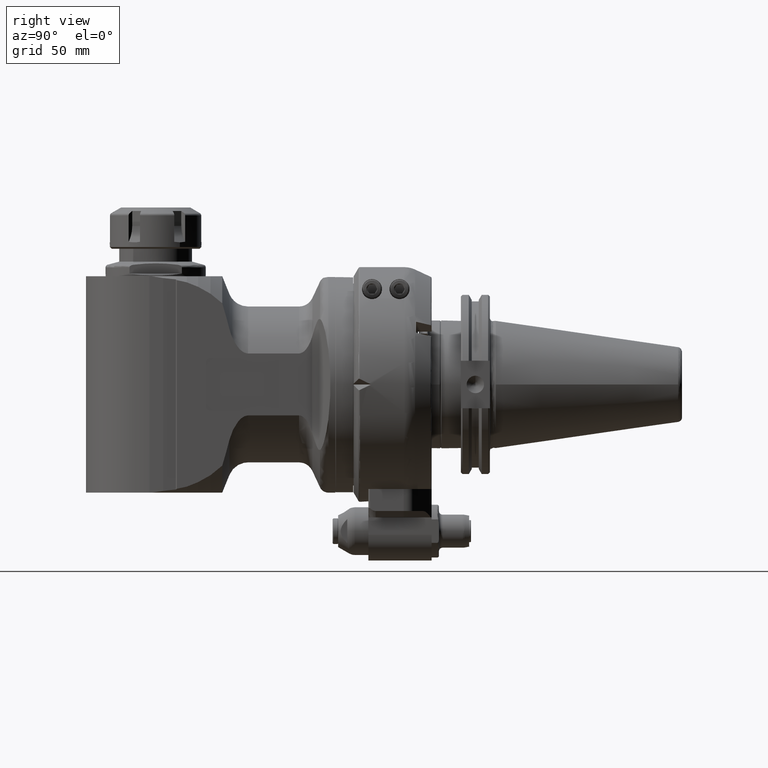
[diagram: clean part render]
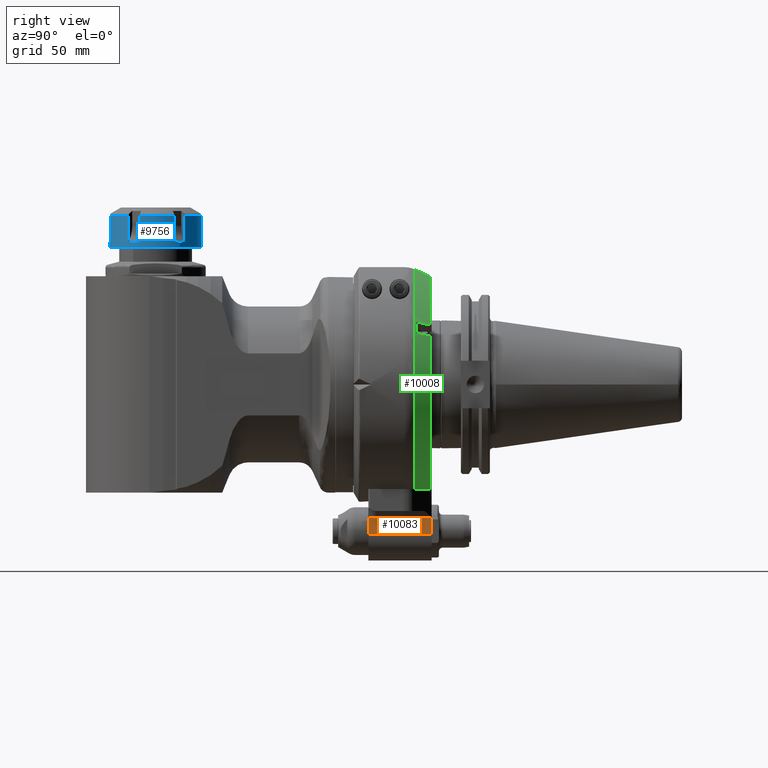
[diagram: same view with three faces highlighted in distinct colors, each labeled with its STEP entity id]
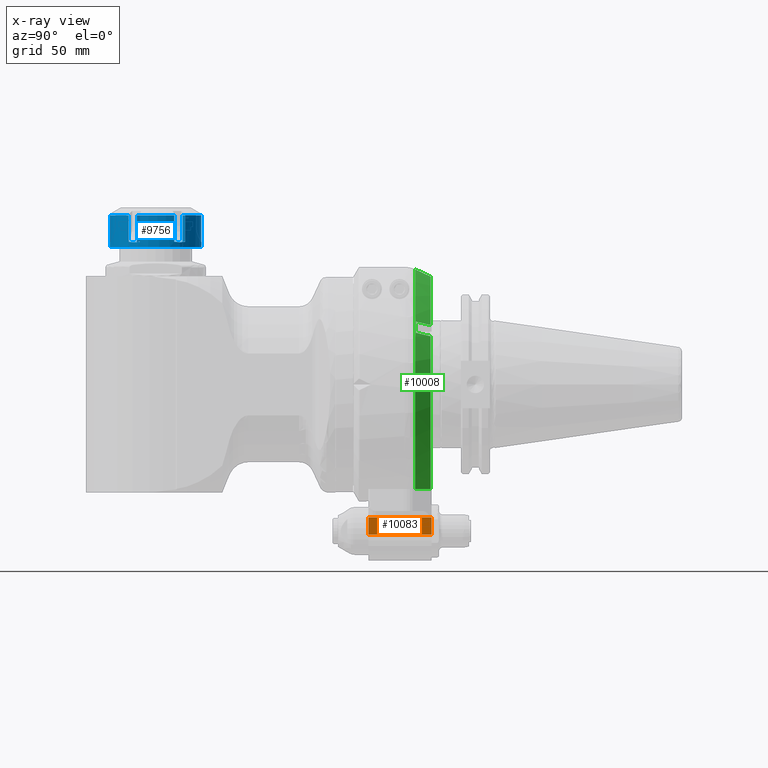
[diagram: x-ray of the same camera — body ghosted, the three highlighted faces saturated]
A machine part, right view with three faces highlighted in distinct colors.
The next image is the same camera in x-ray (body ghosted, the three faces saturated) — at least one of them is partly hidden behind the body in this view.
Their STEP definitions:

[orange] entity #10083 — the highlighted planar face has unit normal (-1, 0, 0).
#114=(
BOUNDED_CURVE()
B_SPLINE_CURVE(2,(#19482,#19483,#19484),.UNSPECIFIED.,.F.,.F.)
B_SPLINE_CURVE_WITH_KNOTS((3,3),(-2.58287776725954,-2.57434975898471),
 .UNSPECIFIED.)
CURVE()
GEOMETRIC_REPRESENTATION_ITEM()
RATIONAL_B_SPLINE_CURVE((1.44254286468406,1.44297118444754,1.44339185140923))
REPRESENTATION_ITEM('')
);
#242=B_SPLINE_CURVE_WITH_KNOTS('',3,(#19485,#19486,#19487,#19488,#19489,
#19490),.UNSPECIFIED.,.F.,.F.,(4,1,1,4),(0.,0.3333333333333,0.6666666666667,
1.),.UNSPECIFIED.);
#618=PLANE('',#11211);
#1256=FACE_OUTER_BOUND('',#1904,.T.);
#1904=EDGE_LOOP('',(#8381,#8382,#8383,#8384,#8385,#8386,#8387));
#2323=LINE('',#16411,#2957);
#2366=LINE('',#16848,#3000);
#2369=LINE('',#16854,#3003);
#2472=LINE('',#18696,#3106);
#2537=LINE('',#19480,#3171);
#2957=VECTOR('',#12657,9.5);
#3000=VECTOR('',#12782,0.7629679276389);
#3003=VECTOR('',#12785,8.70839142844);
#3106=VECTOR('',#13272,34.5);
#3171=VECTOR('',#13591,34.5);
#4312=VERTEX_POINT('',#16408);
#4313=VERTEX_POINT('',#16410);
#4377=VERTEX_POINT('',#16845);
#4378=VERTEX_POINT('',#16847);
#4380=VERTEX_POINT('',#16851);
#4381=VERTEX_POINT('',#16853);
#4627=VERTEX_POINT('',#19481);
#5465=EDGE_CURVE('',#4313,#4312,#2323,.T.);
#5545=EDGE_CURVE('',#4378,#4377,#2366,.T.);
#5548=EDGE_CURVE('',#4381,#4380,#2369,.T.);
#5789=EDGE_CURVE('',#4377,#4313,#2472,.T.);
#5939=EDGE_CURVE('',#4381,#4312,#2537,.T.);
#5940=EDGE_CURVE('',#4627,#4380,#114,.T.);
#5941=EDGE_CURVE('',#4378,#4627,#242,.T.);
#8381=ORIENTED_EDGE('',*,*,#5789,.T.);
#8382=ORIENTED_EDGE('',*,*,#5465,.T.);
#8383=ORIENTED_EDGE('',*,*,#5939,.F.);
#8384=ORIENTED_EDGE('',*,*,#5548,.T.);
#8385=ORIENTED_EDGE('',*,*,#5940,.F.);
#8386=ORIENTED_EDGE('',*,*,#5941,.F.);
#8387=ORIENTED_EDGE('',*,*,#5545,.T.);
#10083=ADVANCED_FACE('',(#1256),#618,.F.);
#11211=AXIS2_PLACEMENT_3D('',#19479,#13589,#13590);
#12657=DIRECTION('',(0.,0.,-1.));
#12782=DIRECTION('',(-3.073496587321E-9,-8.660976697957E-13,1.));
#12785=DIRECTION('',(0.,0.,1.));
#13272=DIRECTION('',(0.,-1.,0.));
#13589=DIRECTION('center_axis',(-1.,0.,0.));
#13590=DIRECTION('ref_axis',(0.,-1.,0.));
#13591=DIRECTION('',(0.,-1.,0.));
#16408=CARTESIAN_POINT('',(15.,7.999999769231,-82.));
#16410=CARTESIAN_POINT('',(15.,7.999999769231,-72.5));
#16411=CARTESIAN_POINT('',(15.,7.999999769231,-72.5));
#16845=CARTESIAN_POINT('',(15.,42.49999976923,-72.5));
#16847=CARTESIAN_POINT('',(15.0000000030541,42.4999997694296,-73.2629679283757));
#16848=CARTESIAN_POINT('',(15.00000000234,42.49999976923,-73.26296792764));
#16851=CARTESIAN_POINT('',(15.,42.49999976923,-73.29160857156));
#16853=CARTESIAN_POINT('',(15.,42.49999976923,-82.));
#16854=CARTESIAN_POINT('',(15.,42.49999976923,-82.));
#18696=CARTESIAN_POINT('',(15.,42.49999976923,-72.5));
#19479=CARTESIAN_POINT('Origin',(15.,55.29999976923,-52.7999976));
#19480=CARTESIAN_POINT('',(15.,42.49999976923,-82.));
#19481=CARTESIAN_POINT('',(14.9999999975254,42.4392078598809,-73.2892304850293));
#19482=CARTESIAN_POINT('Ctrl Pts',(15.,42.4392078600345,-73.2892304853377));
#19483=CARTESIAN_POINT('Ctrl Pts',(15.,42.4696214158217,-73.2904305962976));
#19484=CARTESIAN_POINT('Ctrl Pts',(15.,42.4999997692327,-73.2916085715602));
#19485=CARTESIAN_POINT('Ctrl Pts',(15.00000000234,42.49999976923,-73.26296792764));
#19486=CARTESIAN_POINT('Ctrl Pts',(15.00000000234,42.49325643682,-73.2658556512));
#19487=CARTESIAN_POINT('Ctrl Pts',(14.99999999859,42.47976221864,-73.27165130213));
#19488=CARTESIAN_POINT('Ctrl Pts',(15.00000000141,42.4594983636,-73.28040536456));
#19489=CARTESIAN_POINT('Ctrl Pts',(14.99999999765,42.44597387887,-73.28628201667));
#19490=CARTESIAN_POINT('Ctrl Pts',(14.99999999765,42.43920786026,-73.28923048521));

[blue] entity #9756 — the highlighted cylindrical surface (bore or boss wall) has radius 25 mm, axis along (0, -0, 1).
#152=B_SPLINE_CURVE_WITH_KNOTS('',3,(#15366,#15367,#15368,#15369,#15370,
#15371,#15372,#15373,#15374,#15375),.UNSPECIFIED.,.F.,.F.,(4,2,2,2,4),(1.2833686320491,
1.29546874107736,1.61589836925921,1.93632799744106,1.94842810647175),
 .UNSPECIFIED.);
#153=B_SPLINE_CURVE_WITH_KNOTS('',3,(#15383,#15384,#15385,#15386,#15387,
#15388,#15389,#15390,#15391,#15392),.UNSPECIFIED.,.F.,.F.,(4,2,2,2,4),(1.28336863205176,
1.29546874107993,1.61589836926244,1.93632799744495,1.94842810647282),
 .UNSPECIFIED.);
#154=B_SPLINE_CURVE_WITH_KNOTS('',3,(#15400,#15401,#15402,#15403,#15404,
#15405,#15406,#15407,#15408,#15409),.UNSPECIFIED.,.F.,.F.,(4,2,2,2,4),(1.28336863205147,
1.29546874107986,1.61589836926236,1.93632799744485,1.94842810647336),
 .UNSPECIFIED.);
#155=B_SPLINE_CURVE_WITH_KNOTS('',3,(#15417,#15418,#15419,#15420,#15421,
#15422),.UNSPECIFIED.,.F.,.F.,(4,2,4),(-1.94842810647349,-1.93632799744448,
-1.61589836926205),.UNSPECIFIED.);
#156=B_SPLINE_CURVE_WITH_KNOTS('',3,(#15425,#15426,#15427,#15428,#15429,
#15430),.UNSPECIFIED.,.F.,.F.,(4,2,4),(-1.61589836926205,-1.29546874107962,
-1.28336863205084),.UNSPECIFIED.);
#157=B_SPLINE_CURVE_WITH_KNOTS('',3,(#15438,#15439,#15440,#15441,#15442,
#15443,#15444,#15445,#15446,#15447),.UNSPECIFIED.,.F.,.F.,(4,2,2,2,4),(1.28336863205397,
1.29546874107995,1.61589836926247,1.93632799744499,1.94842810647285),
 .UNSPECIFIED.);
#158=B_SPLINE_CURVE_WITH_KNOTS('',3,(#15455,#15456,#15457,#15458,#15459,
#15460,#15461,#15462,#15463,#15464),.UNSPECIFIED.,.F.,.F.,(4,2,2,2,4),(1.28336863204639,
1.29546874107565,1.61589836925705,1.93632799743846,1.94842810646706),
 .UNSPECIFIED.);
#733=CYLINDRICAL_SURFACE('',#10538,25.);
#929=FACE_OUTER_BOUND('',#1529,.T.);
#1529=EDGE_LOOP('',(#6748,#6749,#6750,#6751,#6752,#6753,#6754,#6755,#6756,
#6757,#6758,#6759,#6760,#6761,#6762,#6763,#6764,#6765,#6766,#6767,#6768,
#6769,#6770,#6771,#6772,#6773,#6774,#6775));
#2181=LINE('',#15377,#2815);
#2182=LINE('',#15381,#2816);
#2183=LINE('',#15394,#2817);
#2184=LINE('',#15398,#2818);
#2185=LINE('',#15411,#2819);
#2186=LINE('',#15415,#2820);
#2187=LINE('',#15423,#2821);
#2188=LINE('',#15432,#2822);
#2189=LINE('',#15436,#2823);
#2190=LINE('',#15449,#2824);
#2191=LINE('',#15453,#2825);
#2192=LINE('',#15466,#2826);
#2193=LINE('',#15469,#2827);
#2815=VECTOR('',#11889,14.29830773003);
#2816=VECTOR('',#11892,14.29830773003);
#2817=VECTOR('',#11893,14.29830773003);
#2818=VECTOR('',#11896,14.29830773003);
#2819=VECTOR('',#11897,14.29830773003);
#2820=VECTOR('',#11900,14.29830773003);
#2821=VECTOR('',#11901,25.);
#2822=VECTOR('',#11902,14.29830773003);
#2823=VECTOR('',#11905,14.29830773003);
#2824=VECTOR('',#11906,14.29830773003);
#2825=VECTOR('',#11909,14.29830773003);
#2826=VECTOR('',#11910,14.29830773003);
#2827=VECTOR('',#11913,14.29830773003);
#3471=CIRCLE('',#10537,25.);
#3472=CIRCLE('',#10539,25.);
#3473=CIRCLE('',#10540,25.);
#3474=CIRCLE('',#10541,25.);
#3475=CIRCLE('',#10542,25.);
#3476=CIRCLE('',#10543,25.);
#3477=CIRCLE('',#10544,25.);
#4094=VERTEX_POINT('',#15360);
#4095=VERTEX_POINT('',#15364);
#4096=VERTEX_POINT('',#15365);
#4097=VERTEX_POINT('',#15376);
#4098=VERTEX_POINT('',#15378);
#4099=VERTEX_POINT('',#15380);
#4100=VERTEX_POINT('',#15382);
#4101=VERTEX_POINT('',#15393);
#4102=VERTEX_POINT('',#15395);
#4103=VERTEX_POINT('',#15397);
#4104=VERTEX_POINT('',#15399);
#4105=VERTEX_POINT('',#15410);
#4106=VERTEX_POINT('',#15412);
#4107=VERTEX_POINT('',#15414);
#4108=VERTEX_POINT('',#15416);
#4109=VERTEX_POINT('',#15424);
#4110=VERTEX_POINT('',#15431);
#4111=VERTEX_POINT('',#15433);
#4112=VERTEX_POINT('',#15435);
#4113=VERTEX_POINT('',#15437);
#4114=VERTEX_POINT('',#15448);
#4115=VERTEX_POINT('',#15450);
#4116=VERTEX_POINT('',#15452);
#4117=VERTEX_POINT('',#15454);
#4118=VERTEX_POINT('',#15465);
#4119=VERTEX_POINT('',#15467);
#5115=EDGE_CURVE('',#4094,#4094,#3471,.T.);
#5117=EDGE_CURVE('',#4095,#4096,#152,.T.);
#5118=EDGE_CURVE('',#4095,#4097,#2181,.T.);
#5119=EDGE_CURVE('',#4098,#4097,#3472,.T.);
#5120=EDGE_CURVE('',#4098,#4099,#2182,.T.);
#5121=EDGE_CURVE('',#4100,#4099,#153,.T.);
#5122=EDGE_CURVE('',#4100,#4101,#2183,.T.);
#5123=EDGE_CURVE('',#4102,#4101,#3473,.T.);
#5124=EDGE_CURVE('',#4102,#4103,#2184,.T.);
#5125=EDGE_CURVE('',#4104,#4103,#154,.T.);
#5126=EDGE_CURVE('',#4104,#4105,#2185,.T.);
#5127=EDGE_CURVE('',#4106,#4105,#3474,.T.);
#5128=EDGE_CURVE('',#4106,#4107,#2186,.T.);
#5129=EDGE_CURVE('',#4108,#4107,#155,.F.);
#5130=EDGE_CURVE('',#4108,#4094,#2187,.T.);
#5131=EDGE_CURVE('',#4109,#4108,#156,.F.);
#5132=EDGE_CURVE('',#4109,#4110,#2188,.T.);
#5133=EDGE_CURVE('',#4111,#4110,#3475,.T.);
#5134=EDGE_CURVE('',#4111,#4112,#2189,.T.);
#5135=EDGE_CURVE('',#4113,#4112,#157,.T.);
#5136=EDGE_CURVE('',#4113,#4114,#2190,.T.);
#5137=EDGE_CURVE('',#4115,#4114,#3476,.T.);
#5138=EDGE_CURVE('',#4115,#4116,#2191,.T.);
#5139=EDGE_CURVE('',#4117,#4116,#158,.T.);
#5140=EDGE_CURVE('',#4117,#4118,#2192,.T.);
#5141=EDGE_CURVE('',#4119,#4118,#3477,.T.);
#5142=EDGE_CURVE('',#4119,#4096,#2193,.T.);
#6748=ORIENTED_EDGE('',*,*,#5117,.F.);
#6749=ORIENTED_EDGE('',*,*,#5118,.T.);
#6750=ORIENTED_EDGE('',*,*,#5119,.F.);
#6751=ORIENTED_EDGE('',*,*,#5120,.T.);
#6752=ORIENTED_EDGE('',*,*,#5121,.F.);
#6753=ORIENTED_EDGE('',*,*,#5122,.T.);
#6754=ORIENTED_EDGE('',*,*,#5123,.F.);
#6755=ORIENTED_EDGE('',*,*,#5124,.T.);
#6756=ORIENTED_EDGE('',*,*,#5125,.F.);
#6757=ORIENTED_EDGE('',*,*,#5126,.T.);
#6758=ORIENTED_EDGE('',*,*,#5127,.F.);
#6759=ORIENTED_EDGE('',*,*,#5128,.T.);
#6760=ORIENTED_EDGE('',*,*,#5129,.F.);
#6761=ORIENTED_EDGE('',*,*,#5130,.T.);
#6762=ORIENTED_EDGE('',*,*,#5115,.F.);
#6763=ORIENTED_EDGE('',*,*,#5130,.F.);
#6764=ORIENTED_EDGE('',*,*,#5131,.F.);
#6765=ORIENTED_EDGE('',*,*,#5132,.T.);
#6766=ORIENTED_EDGE('',*,*,#5133,.F.);
#6767=ORIENTED_EDGE('',*,*,#5134,.T.);
#6768=ORIENTED_EDGE('',*,*,#5135,.F.);
#6769=ORIENTED_EDGE('',*,*,#5136,.T.);
#6770=ORIENTED_EDGE('',*,*,#5137,.F.);
#6771=ORIENTED_EDGE('',*,*,#5138,.T.);
#6772=ORIENTED_EDGE('',*,*,#5139,.F.);
#6773=ORIENTED_EDGE('',*,*,#5140,.T.);
#6774=ORIENTED_EDGE('',*,*,#5141,.F.);
#6775=ORIENTED_EDGE('',*,*,#5142,.T.);
#9756=ADVANCED_FACE('',(#929),#733,.T.);
#10537=AXIS2_PLACEMENT_3D('',#15361,#11884,#11885);
#10538=AXIS2_PLACEMENT_3D('',#15363,#11887,#11888);
#10539=AXIS2_PLACEMENT_3D('',#15379,#11890,#11891);
#10540=AXIS2_PLACEMENT_3D('',#15396,#11894,#11895);
#10541=AXIS2_PLACEMENT_3D('',#15413,#11898,#11899);
#10542=AXIS2_PLACEMENT_3D('',#15434,#11903,#11904);
#10543=AXIS2_PLACEMENT_3D('',#15451,#11907,#11908);
#10544=AXIS2_PLACEMENT_3D('',#15468,#11911,#11912);
#11884=DIRECTION('center_axis',(0.,1.,0.));
#11885=DIRECTION('ref_axis',(-0.529933890699467,0.,0.848038956350547));
#11887=DIRECTION('center_axis',(0.,-1.,0.));
#11888=DIRECTION('ref_axis',(0.529933890699467,0.,-0.848038956350547));
#11889=DIRECTION('',(-1.888378993423E-14,-1.,3.031345226284E-14));
#11890=DIRECTION('center_axis',(0.,-1.,0.));
#11891=DIRECTION('ref_axis',(-0.34166268719178,0.,-0.939822647195146));
#11892=DIRECTION('',(1.093272048824E-14,1.,0.));
#11893=DIRECTION('',(2.882262674172E-14,-1.,2.186544097647E-14));
#11894=DIRECTION('center_axis',(0.,-1.,0.));
#11895=DIRECTION('ref_axis',(-0.984741631118832,0.,-0.174022756964206));
#11896=DIRECTION('',(0.,1.,-1.192660416899E-14));
#11897=DIRECTION('',(3.379204514546E-14,-1.,0.));
#11898=DIRECTION('center_axis',(0.,-1.,0.));
#11899=DIRECTION('ref_axis',(-0.643078943927024,0.,0.765799890230929));
#11900=DIRECTION('',(-1.391437153049E-14,1.,0.));
#11901=DIRECTION('',(0.,1.,0.));
#11902=DIRECTION('',(-2.087155729573E-14,-1.,-4.720947483558E-14));
#11903=DIRECTION('center_axis',(0.,-1.,0.));
#11904=DIRECTION('ref_axis',(0.341662687191812,0.,0.939822647195134));
#11905=DIRECTION('',(-2.484709201873E-14,1.,1.615060981217E-14));
#11906=DIRECTION('',(-3.279816146471E-14,-1.,-2.559250477928E-14));
#11907=DIRECTION('center_axis',(0.,-1.,0.));
#11908=DIRECTION('ref_axis',(0.984741631118832,0.,0.174022756964206));
#11909=DIRECTION('',(0.,1.,0.));
#11910=DIRECTION('',(-4.174311459145E-14,-1.,0.));
#11911=DIRECTION('center_axis',(0.,-1.,0.));
#11912=DIRECTION('ref_axis',(0.643078943927024,0.,-0.765799890230929));
#11913=DIRECTION('',(0.,1.,0.));
#15360=CARTESIAN_POINT('',(96.75165273251,-75.,21.20097390876));
#15361=CARTESIAN_POINT('Origin',(110.,-75.,6.471299424077E-14));
#15363=CARTESIAN_POINT('Origin',(110.,-83.5,6.518483902624E-14));
#15364=CARTESIAN_POINT('',(120.160516134,-77.83566686619,-22.84215208536));
#15365=CARTESIAN_POINT('',(126.0769735982,-77.83566686619,-19.14499725577));
#15366=CARTESIAN_POINT('Ctrl Pts',(120.160516134002,-77.8356668661983,-22.8421520853594));
#15367=CARTESIAN_POINT('Ctrl Pts',(120.199744558307,-77.8272006773188,-22.8247027208436));
#15368=CARTESIAN_POINT('Ctrl Pts',(120.238964364057,-77.8189000401072,-22.8071361206508));
#15369=CARTESIAN_POINT('Ctrl Pts',(121.316373475687,-77.5953369935485,-22.3212189231742));
#15370=CARTESIAN_POINT('Ctrl Pts',(122.342557909263,-77.5000000000137,-21.7669956406229));
#15371=CARTESIAN_POINT('Ctrl Pts',(124.15413662571,-77.5000000000137,-20.6349521769043));
#15372=CARTESIAN_POINT('Ctrl Pts',(125.102095424081,-77.5953369935485,-19.9555465136752));
#15373=CARTESIAN_POINT('Ctrl Pts',(126.011113919719,-77.8189000401088,-19.2001583411206));
#15374=CARTESIAN_POINT('Ctrl Pts',(126.044094556275,-77.8272006773221,-19.172607366211));
#15375=CARTESIAN_POINT('Ctrl Pts',(126.076973598189,-77.8356668662034,-19.1449972557616));
#15376=CARTESIAN_POINT('',(120.160516134,-92.13397459622,-22.84215208536));
#15377=CARTESIAN_POINT('',(120.160516134,-77.83566686618,-22.84215208536));
#15378=CARTESIAN_POINT('',(101.4584328202,-92.13397459622,-23.49556617988));
#15379=CARTESIAN_POINT('Origin',(110.,-92.13397459622,6.566412089578E-14));
#15380=CARTESIAN_POINT('',(101.4584328202,-77.83566686619,-23.49556617987));
#15381=CARTESIAN_POINT('',(101.4584328202,-92.13397459622,-23.49556617988));
#15382=CARTESIAN_POINT('',(95.29837408397,-77.83566686619,-20.22034113028));
#15383=CARTESIAN_POINT('Ctrl Pts',(95.2983740839662,-77.8356668661823,-20.2203411302827));
#15384=CARTESIAN_POINT('Ctrl Pts',(95.3330998890692,-77.8272006773028,-20.2455892600233));
#15385=CARTESIAN_POINT('Ctrl Pts',(95.367922913969,-77.8189000400913,-20.2707713080377));
#15386=CARTESIAN_POINT('Ctrl Pts',(96.327444106936,-77.5953369935324,-20.9608763702414));
#15387=CARTESIAN_POINT('Ctrl Pts',(97.3205077657842,-77.4999999999975,-21.5724665174122));
#15388=CARTESIAN_POINT('Ctrl Pts',(99.2066755217802,-77.4999999999975,-22.5753179749538));
#15389=CARTESIAN_POINT('Ctrl Pts',(100.269037484799,-77.5953369935324,-23.0565715444699));
#15390=CARTESIAN_POINT('Ctrl Pts',(101.377732079762,-77.8189000400911,-23.4661105679221));
#15391=CARTESIAN_POINT('Ctrl Pts',(101.418082242201,-77.8272006773024,-23.4808971495548));
#15392=CARTESIAN_POINT('Ctrl Pts',(101.458432820199,-77.8356668661817,-23.4955661798764));
#15393=CARTESIAN_POINT('',(95.29837408396,-92.13397459622,-20.22034113028));
#15394=CARTESIAN_POINT('',(95.29837408396,-77.83566686619,-20.22034113028));
#15395=CARTESIAN_POINT('',(85.38145922203,-92.13397459622,-4.350568924106));
#15396=CARTESIAN_POINT('Origin',(110.,-92.13397459622,6.566412089578E-14));
#15397=CARTESIAN_POINT('',(85.38145922203,-77.83566686619,-4.350568924105));
#15398=CARTESIAN_POINT('',(85.38145922203,-92.13397459622,-4.350568924106));
#15399=CARTESIAN_POINT('',(85.13785794997,-77.83566686618,2.621810955082));
#15400=CARTESIAN_POINT('Ctrl Pts',(85.1378579499711,-77.8356668661832,2.62181095508125));
#15401=CARTESIAN_POINT('Ctrl Pts',(85.1333553307691,-77.8272006773036,2.5791134608241));
#15402=CARTESIAN_POINT('Ctrl Pts',(85.1289585499191,-77.8189000400919,2.53636481261629));
#15403=CARTESIAN_POINT('Ctrl Pts',(85.0110706312539,-77.5953369935328,1.36034255293476));
#15404=CARTESIAN_POINT('Ctrl Pts',(84.9779498565238,-77.4999999999979,0.194529123211796));
#15405=CARTESIAN_POINT('Ctrl Pts',(85.0525388960686,-77.4999999999979,-1.94036579805058));
#15406=CARTESIAN_POINT('Ctrl Pts',(85.1669420607152,-77.5953369935329,-3.10102503079719));
#15407=CARTESIAN_POINT('Ctrl Pts',(85.3666181600462,-77.818900040092,-4.26595222680157));
#15408=CARTESIAN_POINT('Ctrl Pts',(85.3739876859373,-77.8272006773037,-4.30828978333963));
#15409=CARTESIAN_POINT('Ctrl Pts',(85.3814592220294,-77.8356668661834,-4.35056892410641));
#15410=CARTESIAN_POINT('',(85.13785794997,-92.13397459622,2.621810955082));
#15411=CARTESIAN_POINT('',(85.13785794997,-77.83566686618,2.621810955082));
#15412=CARTESIAN_POINT('',(93.92302640182,-92.13397459622,19.14499725577));
#15413=CARTESIAN_POINT('Origin',(110.,-92.13397459622,6.566412089578E-14));
#15414=CARTESIAN_POINT('',(93.92302640182,-77.83566686619,19.14499725577));
#15415=CARTESIAN_POINT('',(93.92302640182,-92.13397459622,19.14499725577));
#15416=CARTESIAN_POINT('',(96.7516527325133,-77.4999999999994,21.2009739087637));
#15417=CARTESIAN_POINT('Ctrl Pts',(93.9230264018196,-77.835666866186,19.1449972557693));
#15418=CARTESIAN_POINT('Ctrl Pts',(93.9559054437291,-77.8272006773059,19.1726073662149));
#15419=CARTESIAN_POINT('Ctrl Pts',(93.988886080281,-77.8189000400938,19.2001583411206));
#15420=CARTESIAN_POINT('Ctrl Pts',(94.8979045759158,-77.5953369935343,19.955546513673));
#15421=CARTESIAN_POINT('Ctrl Pts',(95.8458633742879,-77.4999999999994,20.6349521769034));
#15422=CARTESIAN_POINT('Ctrl Pts',(96.7516527325133,-77.4999999999994,21.2009739087638));
#15423=CARTESIAN_POINT('',(96.7516527325133,-83.5,21.2009739087637));
#15424=CARTESIAN_POINT('',(99.83948386601,-77.83566686619,22.84215208536));
#15425=CARTESIAN_POINT('Ctrl Pts',(96.7516527325133,-77.4999999999994,21.2009739087638));
#15426=CARTESIAN_POINT('Ctrl Pts',(97.6574420907387,-77.4999999999994,21.7669956406241));
#15427=CARTESIAN_POINT('Ctrl Pts',(98.6836265243167,-77.5953369935344,22.3212189231762));
#15428=CARTESIAN_POINT('Ctrl Pts',(99.7610356359505,-77.8189000400936,22.8071361206542));
#15429=CARTESIAN_POINT('Ctrl Pts',(99.8002554417021,-77.8272006773056,22.8247027208477));
#15430=CARTESIAN_POINT('Ctrl Pts',(99.839483866009,-77.8356668661855,22.8421520853643));
#15431=CARTESIAN_POINT('',(99.83948386601,-92.13397459622,22.84215208536));
#15432=CARTESIAN_POINT('',(99.83948386601,-77.83566686619,22.84215208536));
#15433=CARTESIAN_POINT('',(118.5415671798,-92.13397459622,23.49556617988));
#15434=CARTESIAN_POINT('Origin',(110.,-92.13397459622,6.566412089578E-14));
#15435=CARTESIAN_POINT('',(118.5415671798,-77.83566686619,23.49556617987));
#15436=CARTESIAN_POINT('',(118.5415671798,-92.13397459622,23.49556617988));
#15437=CARTESIAN_POINT('',(124.701625916,-77.83566686619,20.22034113028));
#15438=CARTESIAN_POINT('Ctrl Pts',(124.701625916015,-77.8356668661776,20.2203411302965));
#15439=CARTESIAN_POINT('Ctrl Pts',(124.666900110918,-77.8272006772997,20.2455892600325));
#15440=CARTESIAN_POINT('Ctrl Pts',(124.632077086025,-77.8189000400897,20.2707713080423));
#15441=CARTESIAN_POINT('Ctrl Pts',(123.672555893064,-77.5953369935323,20.9608763702415));
#15442=CARTESIAN_POINT('Ctrl Pts',(122.679492234216,-77.4999999999974,21.5724665174123));
#15443=CARTESIAN_POINT('Ctrl Pts',(120.79332447822,-77.4999999999974,22.5753179749539));
#15444=CARTESIAN_POINT('Ctrl Pts',(119.730962515201,-77.5953369935323,23.05657154447));
#15445=CARTESIAN_POINT('Ctrl Pts',(118.622267920238,-77.818900040091,23.4661105679223));
#15446=CARTESIAN_POINT('Ctrl Pts',(118.581917757799,-77.8272006773023,23.4808971495549));
#15447=CARTESIAN_POINT('Ctrl Pts',(118.541567179801,-77.8356668661816,23.4955661798765));
#15448=CARTESIAN_POINT('',(124.701625916,-92.13397459622,20.22034113028));
#15449=CARTESIAN_POINT('',(124.701625916,-77.83566686619,20.22034113028));
#15450=CARTESIAN_POINT('',(134.618540778,-92.13397459622,4.350568924106));
#15451=CARTESIAN_POINT('Origin',(110.,-92.13397459622,6.566412089578E-14));
#15452=CARTESIAN_POINT('',(134.618540778,-77.83566686619,4.350568924105));
#15453=CARTESIAN_POINT('',(134.618540778,-92.13397459622,4.350568924106));
#15454=CARTESIAN_POINT('',(134.86214205,-77.83566686618,-2.621810955082));
#15455=CARTESIAN_POINT('Ctrl Pts',(134.862142050029,-77.835666866211,-2.62181095507893));
#15456=CARTESIAN_POINT('Ctrl Pts',(134.866644669231,-77.8272006773307,-2.57911346081871));
#15457=CARTESIAN_POINT('Ctrl Pts',(134.871041450082,-77.8189000401184,-2.53636481260784));
#15458=CARTESIAN_POINT('Ctrl Pts',(134.988929368746,-77.5953369935593,-1.36034255292705));
#15459=CARTESIAN_POINT('Ctrl Pts',(135.022050143476,-77.5000000000246,-0.194529123208044));
#15460=CARTESIAN_POINT('Ctrl Pts',(134.947461103931,-77.5000000000246,1.94036579804709));
#15461=CARTESIAN_POINT('Ctrl Pts',(134.833057939286,-77.5953369935593,3.10102503078979));
#15462=CARTESIAN_POINT('Ctrl Pts',(134.633381839956,-77.818900040118,4.26595222679073));
#15463=CARTESIAN_POINT('Ctrl Pts',(134.626012314065,-77.8272006773298,4.3082897833291));
#15464=CARTESIAN_POINT('Ctrl Pts',(134.618540777972,-77.8356668662096,4.35056892409619));
#15465=CARTESIAN_POINT('',(134.86214205,-92.13397459622,-2.621810955082));
#15466=CARTESIAN_POINT('',(134.86214205,-77.83566686618,-2.621810955082));
#15467=CARTESIAN_POINT('',(126.0769735982,-92.13397459622,-19.14499725577));
#15468=CARTESIAN_POINT('Origin',(110.,-92.13397459622,6.566412089578E-14));
#15469=CARTESIAN_POINT('',(126.0769735982,-92.13397459622,-19.14499725577));

[green] entity #10008 — the highlighted conical surface has half-angle 25 deg.
#209=B_SPLINE_CURVE_WITH_KNOTS('',3,(#18554,#18555,#18556,#18557,#18558,
#18559,#18560,#18561,#18562,#18563),.UNSPECIFIED.,.F.,.F.,(4,3,3,4),(1.02730984590457E-5,
0.3333333333333,0.6666666666667,1.),.UNSPECIFIED.);
#210=B_SPLINE_CURVE_WITH_KNOTS('',3,(#18571,#18572,#18573,#18574,#18575,
#18576,#18577,#18578,#18579,#18580),.UNSPECIFIED.,.F.,.F.,(4,1,1,1,1,1,
1,4),(0.,0.1428571428571,0.2857142857143,0.4285714285714,0.5714285714286,
0.7142857142857,0.8571428571429,1.),.UNSPECIFIED.);
#211=B_SPLINE_CURVE_WITH_KNOTS('',3,(#18583,#18584,#18585,#18586,#18587,
#18588,#18589,#18590,#18591,#18592),.UNSPECIFIED.,.F.,.F.,(4,3,3,4),(0.,
0.3333333333333,0.6666666666667,0.999989987187484),.UNSPECIFIED.);
#212=B_SPLINE_CURVE_WITH_KNOTS('',3,(#18596,#18597,#18598,#18599,#18600,
#18601,#18602,#18603,#18604,#18605),.UNSPECIFIED.,.F.,.F.,(4,3,3,4),(1.71057939529583E-6,
0.3333333333333,0.6666666666667,1.),.UNSPECIFIED.);
#213=B_SPLINE_CURVE_WITH_KNOTS('',3,(#18608,#18609,#18610,#18611,#18612,
#18613,#18614),.UNSPECIFIED.,.F.,.F.,(4,1,1,1,4),(0.,0.25,0.5,0.75,1.),
 .UNSPECIFIED.);
#1181=FACE_OUTER_BOUND('',#1818,.T.);
#1818=EDGE_LOOP('',(#8002,#8003,#8004,#8005,#8006,#8007,#8008,#8009,#8010));
#3736=CIRCLE('',#11068,62.46361509432);
#3737=CIRCLE('',#11073,58.76923752623);
#3738=CIRCLE('',#11074,58.76923752623);
#3739=CIRCLE('',#11075,62.68830901851);
#4520=VERTEX_POINT('',#18537);
#4526=VERTEX_POINT('',#18549);
#4527=VERTEX_POINT('',#18553);
#4529=VERTEX_POINT('',#18569);
#4530=VERTEX_POINT('',#18570);
#4531=VERTEX_POINT('',#18582);
#4532=VERTEX_POINT('',#18593);
#4533=VERTEX_POINT('',#18595);
#4534=VERTEX_POINT('',#18606);
#5767=EDGE_CURVE('',#4526,#4520,#3736,.T.);
#5768=EDGE_CURVE('',#4527,#4520,#209,.T.);
#5772=EDGE_CURVE('',#4529,#4530,#210,.T.);
#5773=EDGE_CURVE('',#4527,#4529,#3737,.T.);
#5774=EDGE_CURVE('',#4526,#4531,#211,.T.);
#5775=EDGE_CURVE('',#4532,#4531,#3738,.T.);
#5776=EDGE_CURVE('',#4532,#4533,#212,.T.);
#5777=EDGE_CURVE('',#4534,#4533,#3739,.T.);
#5778=EDGE_CURVE('',#4530,#4534,#213,.T.);
#8002=ORIENTED_EDGE('',*,*,#5772,.F.);
#8003=ORIENTED_EDGE('',*,*,#5773,.F.);
#8004=ORIENTED_EDGE('',*,*,#5768,.T.);
#8005=ORIENTED_EDGE('',*,*,#5767,.F.);
#8006=ORIENTED_EDGE('',*,*,#5774,.T.);
#8007=ORIENTED_EDGE('',*,*,#5775,.F.);
#8008=ORIENTED_EDGE('',*,*,#5776,.T.);
#8009=ORIENTED_EDGE('',*,*,#5777,.F.);
#8010=ORIENTED_EDGE('',*,*,#5778,.F.);
#9468=CONICAL_SURFACE('',#11072,60.72877327237,0.436332312998582);
#10008=ADVANCED_FACE('',(#1181),#9468,.T.);
#11068=AXIS2_PLACEMENT_3D('',#18551,#13233,#13234);
#11072=AXIS2_PLACEMENT_3D('',#18568,#13242,#13243);
#11073=AXIS2_PLACEMENT_3D('',#18581,#13244,#13245);
#11074=AXIS2_PLACEMENT_3D('',#18594,#13246,#13247);
#11075=AXIS2_PLACEMENT_3D('',#18607,#13248,#13249);
#13233=DIRECTION('center_axis',(0.,1.,0.));
#13234=DIRECTION('ref_axis',(0.836648514801896,0.,0.547740141563298));
#13242=DIRECTION('center_axis',(0.,-1.,0.));
#13243=DIRECTION('ref_axis',(0.,0.,1.));
#13244=DIRECTION('center_axis',(0.,1.,0.));
#13245=DIRECTION('ref_axis',(0.894265716161126,0.,0.447536399523913));
#13246=DIRECTION('center_axis',(0.,1.,0.));
#13247=DIRECTION('ref_axis',(0.025523554657049,0.,0.99967422101286));
#13248=DIRECTION('center_axis',(0.,-1.,0.));
#13249=DIRECTION('ref_axis',(0.416227625267496,0.,-0.90926044891669));
#18537=CARTESIAN_POINT('',(55.76009079782,33.99999976923,28.15165154783));
#18549=CARTESIAN_POINT('',(52.26009079782,33.99999976923,34.21382937432));
#18551=CARTESIAN_POINT('Origin',(0.,33.99999976923,0.));
#18553=CARTESIAN_POINT('',(52.5553140756384,41.9226180914408,26.3013733606339));
#18554=CARTESIAN_POINT('Ctrl Pts',(52.5553143060926,41.9226180951775,26.3013729776423));
#18555=CARTESIAN_POINT('Ctrl Pts',(52.8974984834702,41.0767839762014,26.4989331045637));
#18556=CARTESIAN_POINT('Ctrl Pts',(53.2442676749145,40.2195859070401,26.6991403905907));
#18557=CARTESIAN_POINT('Ctrl Pts',(53.5956290017407,39.3510058627919,26.9019989472166));
#18558=CARTESIAN_POINT('Ctrl Pts',(53.9470011576093,38.4823990486934,27.1048637559931));
#18559=CARTESIAN_POINT('Ctrl Pts',(54.3029657319258,37.6024095579066,27.3103799987967));
#18560=CARTESIAN_POINT('Ctrl Pts',(54.6636907338381,36.7106214450431,27.5186446757542));
#18561=CARTESIAN_POINT('Ctrl Pts',(55.0244157357503,35.8188333321799,27.7269093527117));
#18562=CARTESIAN_POINT('Ctrl Pts',(55.3899011652583,34.91524659724,27.937922463823));
#18563=CARTESIAN_POINT('Ctrl Pts',(55.7600907978184,33.99999976923,28.1516515478328));
#18568=CARTESIAN_POINT('Origin',(0.,37.72038006238,0.));
#18569=CARTESIAN_POINT('',(14.31164838246,41.92261803079,-57.00000000001));
#18570=CARTESIAN_POINT('',(21.30096755004,37.460254874,-57.));
#18571=CARTESIAN_POINT('Ctrl Pts',(14.31164838246,41.92261803079,-57.00000000001));
#18572=CARTESIAN_POINT('Ctrl Pts',(14.62396648402,41.75951418185,-57.00000000001));
#18573=CARTESIAN_POINT('Ctrl Pts',(15.25409236313,41.42038656308,-57.));
#18574=CARTESIAN_POINT('Ctrl Pts',(16.21453236387,40.87245272741,-57.));
#18575=CARTESIAN_POINT('Ctrl Pts',(17.19199330034,40.28311589031,-57.));
#18576=CARTESIAN_POINT('Ctrl Pts',(18.18757779219,39.65043298413,-57.));
#18577=CARTESIAN_POINT('Ctrl Pts',(19.20270726732,38.97213704331,-57.));
#18578=CARTESIAN_POINT('Ctrl Pts',(20.23852492529,38.24602551787,-57.));
#18579=CARTESIAN_POINT('Ctrl Pts',(20.94445794427,37.72788618711,-57.));
#18580=CARTESIAN_POINT('Ctrl Pts',(21.30096755004,37.460254874,-57.));
#18581=CARTESIAN_POINT('Origin',(0.,41.92261803097,0.));
#18582=CARTESIAN_POINT('',(49.0553145156717,41.9226180899072,32.3635504238284));
#18583=CARTESIAN_POINT('Ctrl Pts',(52.2600907978213,33.99999976923,34.2138293743178));
#18584=CARTESIAN_POINT('Ctrl Pts',(51.8900419418814,34.91489854495,34.0001815677275));
#18585=CARTESIAN_POINT('Ctrl Pts',(51.5246502883267,35.8182534533199,33.789222598188));
#18586=CARTESIAN_POINT('Ctrl Pts',(51.1639706141339,36.7099295220631,33.5809840912014));
#18587=CARTESIAN_POINT('Ctrl Pts',(50.803290939941,37.6016055908066,33.3727455842147));
#18588=CARTESIAN_POINT('Ctrl Pts',(50.4473232451099,38.4816028199234,33.1672275397811));
#18589=CARTESIAN_POINT('Ctrl Pts',(50.0959038329956,39.3503264683419,32.9643354475983));
#18590=CARTESIAN_POINT('Ctrl Pts',(49.7444949769715,40.2190240216591,32.7614494499771));
#18591=CARTESIAN_POINT('Ctrl Pts',(49.3976341304217,41.0764486715492,32.5611892468501));
#18592=CARTESIAN_POINT('Ctrl Pts',(49.0553143054036,41.9226180935379,32.3635508037268));
#18593=CARTESIAN_POINT('',(1.49999981211714,41.9226180525519,58.7500917349531));
#18594=CARTESIAN_POINT('Origin',(0.,41.92261803097,0.));
#18595=CARTESIAN_POINT('',(1.49999987294062,33.5181468910144,62.670358284432));
#18596=CARTESIAN_POINT('Ctrl Pts',(1.499999846154,41.9226180526766,58.7500917352221));
#18597=CARTESIAN_POINT('Ctrl Pts',(1.499999846154,41.0144512778658,59.1737148646847));
#18598=CARTESIAN_POINT('Ctrl Pts',(1.499999846154,40.0977525072244,59.6013148391658));
#18599=CARTESIAN_POINT('Ctrl Pts',(1.499999846154,39.1725530480269,60.0328770844715));
#18600=CARTESIAN_POINT('Ctrl Pts',(1.499999846154,38.2473488409234,60.4644415444533));
#18601=CARTESIAN_POINT('Ctrl Pts',(1.499999846154,37.3136438580166,60.8999683159267));
#18602=CARTESIAN_POINT('Ctrl Pts',(1.499999846154,36.3712601978781,61.3395404066135));
#18603=CARTESIAN_POINT('Ctrl Pts',(1.499999846154,35.4288765377399,61.7791124973001));
#18604=CARTESIAN_POINT('Ctrl Pts',(1.499999846154,34.47781420037,62.2227299072));
#18605=CARTESIAN_POINT('Ctrl Pts',(1.499999846154,33.51815168744,62.67035604754));
#18606=CARTESIAN_POINT('',(26.09260599481,33.5181420938,-57.));
#18607=CARTESIAN_POINT('Origin',(0.,33.5181420938,0.));
#18608=CARTESIAN_POINT('Ctrl Pts',(21.30096755004,37.460254874,-57.));
#18609=CARTESIAN_POINT('Ctrl Pts',(21.68063562738,37.17523852538,-57.));
#18610=CARTESIAN_POINT('Ctrl Pts',(22.44996264181,36.58431619857,-57.));
#18611=CARTESIAN_POINT('Ctrl Pts',(23.63156942239,35.63490235576,-57.));
#18612=CARTESIAN_POINT('Ctrl Pts',(24.84368618236,34.61797838814,-57.));
#18613=CARTESIAN_POINT('Ctrl Pts',(25.67298005906,33.89270147253,-57.));
#18614=CARTESIAN_POINT('Ctrl Pts',(26.09260599481,33.5181420938,-57.));